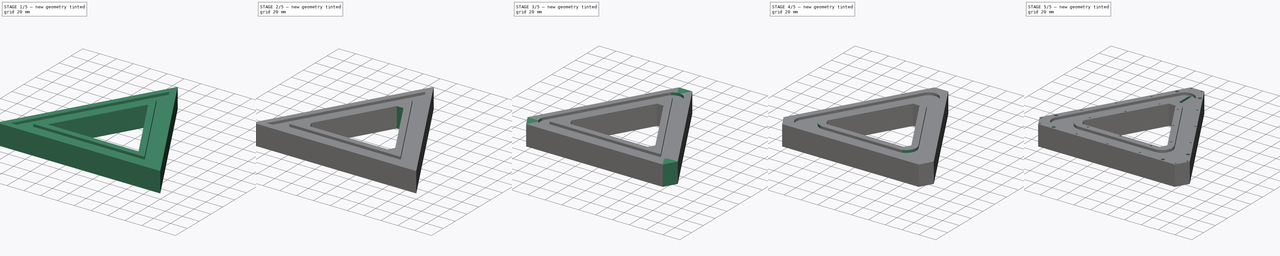
[diagram: build sequence overview — one tinted view per stage of 5, left to right]
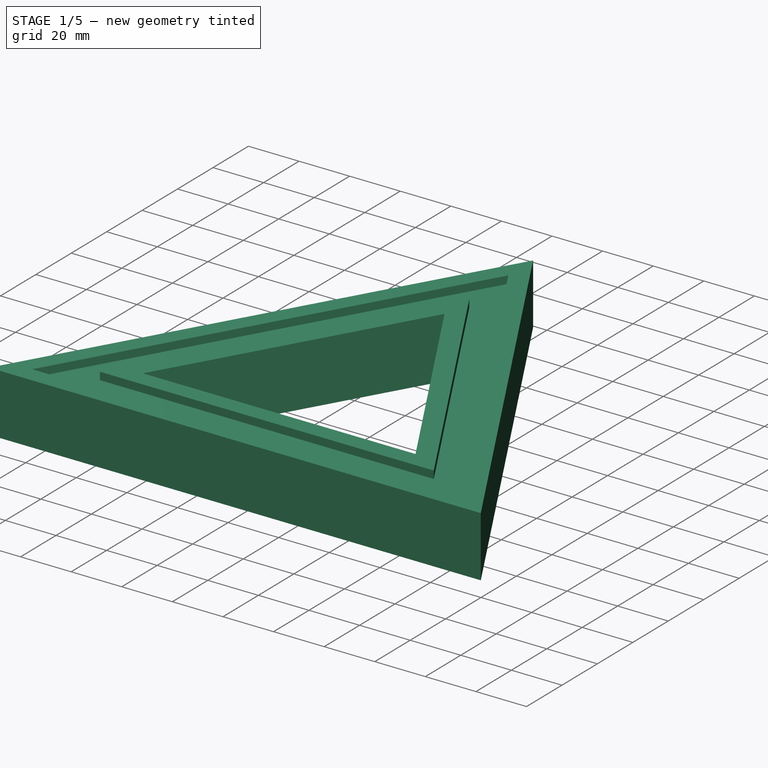
[diagram: stage 1 of 5 — iso view after this stage's code; geometry added in this stage tinted green]
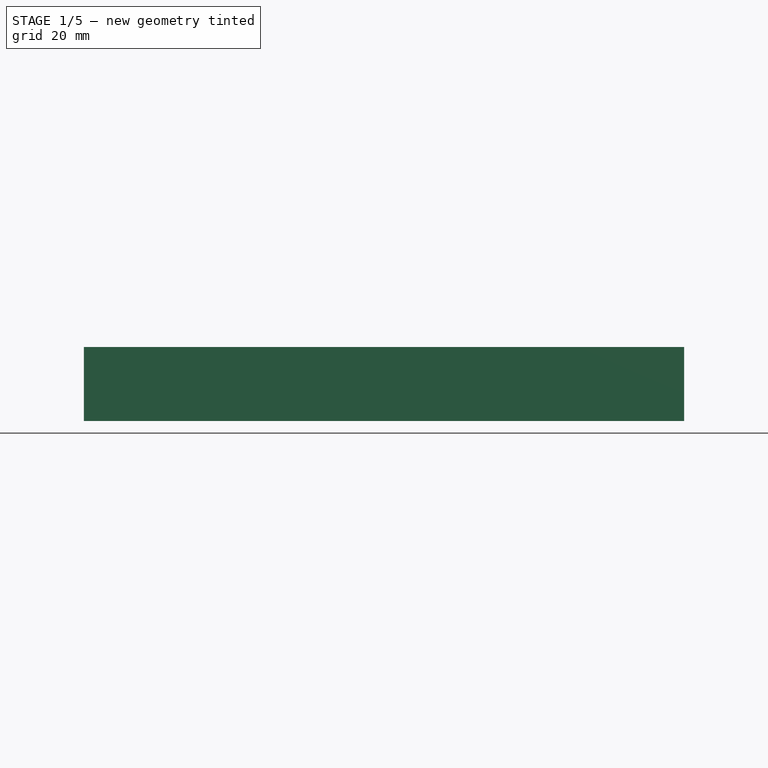
[diagram: stage 1 of 5 — front view after this stage's code; geometry added in this stage tinted green]
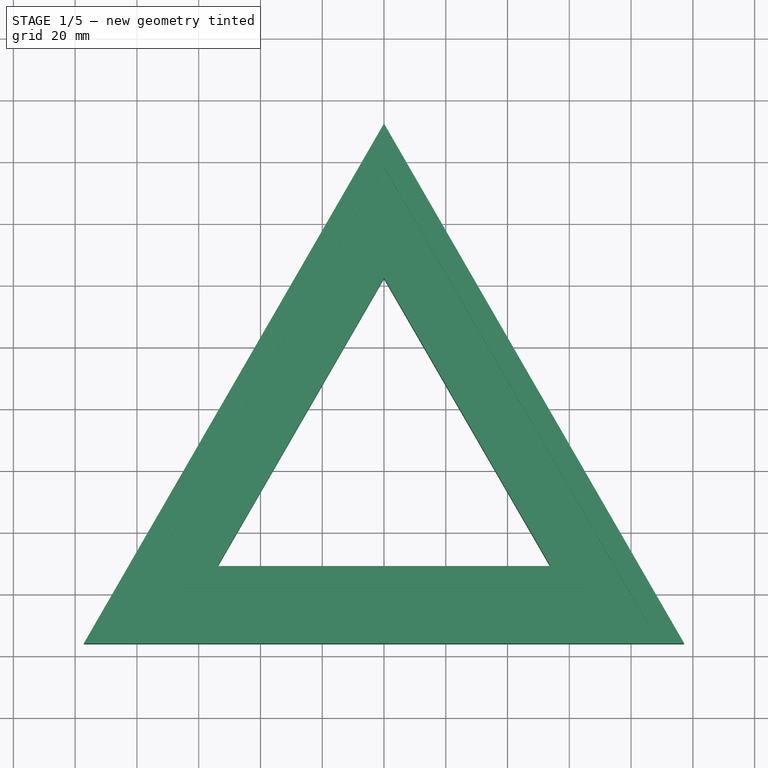
[diagram: stage 1 of 5 — top view after this stage's code; geometry added in this stage tinted green]
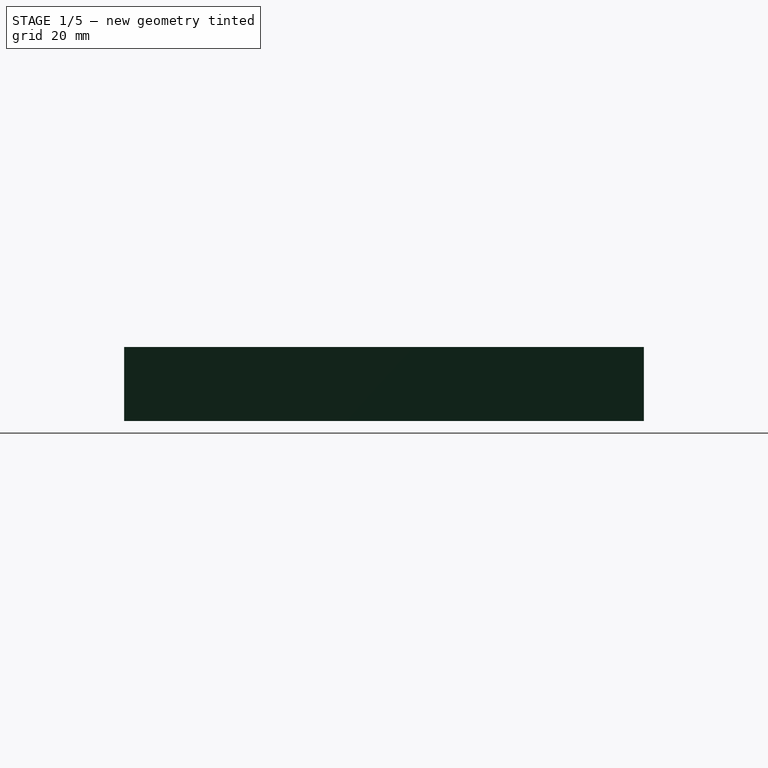
[diagram: stage 1 of 5 — right view after this stage's code; geometry added in this stage tinted green]
FCSTD DOCUMENT  (FreeCAD 0.17R13541 (Git))
Label: Technicolor-Triangle-24-WiFi-Bat-5V-LED-Grooves-Battery-Holes-Wire-CH-Fillets-CHamfs-tp4056-big-chamf-micro-charge-hidden-esp-01-through-wire-Switched-Screwed-All-Set-Back
License: All rights reserved
LicenseURL: http://en.wikipedia.org/wiki/All_rights_reserved
objects: Sketcher::SketchObject×8, PartDesign::Pocket×7, PartDesign::Fillet×4, PartDesign::PolarPattern×2, PartDesign::Chamfer×2, PartDesign::Pad×1, PartDesign::Body×1, App::Part×1
note: 33 computed .brp shape members not serialized (recipe doc carries the construction recipe); baked Part::Feature solids carry a one-line shape summary decoded from their .brp

FEATURE [Sketcher::SketchObject] Sketch
  MapMode = 5
  Support = -> [XY_Plane001]
  sketch-geometry (10):
    g0: LineSegment StartX=0 StartY=62.2095 StartZ=0 EndX=-53.875 EndY=-31.1047 EndZ=0
    g1: LineSegment StartX=-53.875 StartY=-31.1047 StartZ=0 EndX=53.875 EndY=-31.1047 EndZ=0
    g2: LineSegment StartX=53.875 StartY=-31.1047 StartZ=0 EndX=0 EndY=62.2095 EndZ=0
    g3: Circle [constr] CenterX=0 CenterY=0 CenterZ=0 NormalX=0 NormalY=0 NormalZ=1 AngleXU=0 Radius=62.2095
    g4: GeomPoint X=0 Y=-31.1047 Z=0
    g5: LineSegment StartX=0 StartY=112.209 StartZ=0 EndX=-97.1763 EndY=-56.1047 EndZ=0
    g6: LineSegment StartX=-97.1763 StartY=-56.1047 StartZ=0 EndX=97.1763 EndY=-56.1047 EndZ=0
    g7: LineSegment StartX=97.1763 StartY=-56.1047 StartZ=0 EndX=0 EndY=112.209 EndZ=0
    g8: Circle [constr] CenterX=0 CenterY=0 CenterZ=0 NormalX=0 NormalY=0 NormalZ=1 AngleXU=0 Radius=112.209
    g9: GeomPoint X=0 Y=-56.1047 Z=0
  constraints (26):
    c: Coincident(g0,g1)
    c: Coincident(g1,g2)
    c: Coincident(g2,g0)
    c: Equal(g0,g1)
    c: Equal(g0,g2)
    c: PointOnObject(g0,g3)
    c: PointOnObject(g1,g3)
    c: PointOnObject(g2,g3)
    c: Coincident(g3,g-1)
    c: PointOnObject(g2,g-2)
    c: PointOnObject(g4,g1)
    c: PointOnObject(g4,g-2)
    c: Coincident(g5,g6)
    c: Coincident(g6,g7)
    c: Coincident(g7,g5)
    c: Equal(g5,g6)
    c: Equal(g5,g7)
    c: PointOnObject(g5,g8)
    c: PointOnObject(g6,g8)
    c: PointOnObject(g7,g8)
    c: Coincident(g8,g-1)
    c: PointOnObject(g7,g-2)
    c: PointOnObject(g9,g6)
    c: PointOnObject(g9,g-2)
    c: Distance(g0,g1) = 107.75
    c: Distance(g4,g9) = 25
FEATURE [PartDesign::Pad] Pad
  Length = 24
  Length2 = 100
  Profile = -> Sketch
  Type = 0
FEATURE [Sketcher::SketchObject] Sketch001
  ExternalGeometry = -> [Pad]
  MapMode = 5
  Placement = pos=(0,0,24) rot=(0,0,1;0rad)
  Support = -> [Pad]
  sketch-geometry (11):
    g0: LineSegment StartX=0 StartY=98.2095 StartZ=0 EndX=-85.0519 EndY=-49.1047 EndZ=0
    g1: LineSegment StartX=-85.0519 StartY=-49.1047 StartZ=0 EndX=85.0519 EndY=-49.1047 EndZ=0
    g2: LineSegment StartX=85.0519 StartY=-49.1047 StartZ=0 EndX=0 EndY=98.2095 EndZ=0
    g3: Circle [constr] CenterX=0 CenterY=0 CenterZ=0 NormalX=0 NormalY=0 NormalZ=1 AngleXU=0 Radius=98.2095
    g4: GeomPoint X=0 Y=-49.1047 Z=0
    g5: GeomPoint X=0 Y=-56.1047 Z=0
    g6: LineSegment StartX=0 StartY=76.2095 StartZ=0 EndX=-65.9994 EndY=-38.1047 EndZ=0
    g7: LineSegment StartX=-65.9994 StartY=-38.1047 StartZ=0 EndX=65.9994 EndY=-38.1047 EndZ=0
    g8: LineSegment StartX=65.9994 StartY=-38.1047 StartZ=0 EndX=0 EndY=76.2095 EndZ=0
    g9: Circle [constr] CenterX=0 CenterY=0 CenterZ=0 NormalX=0 NormalY=0 NormalZ=1 AngleXU=0 Radius=76.2095
    g10: GeomPoint X=0 Y=-38.1047 Z=0
  constraints (28):
    c: Coincident(g0,g1)
    c: Coincident(g1,g2)
    c: Coincident(g2,g0)
    c: Equal(g0,g1)
    c: Equal(g0,g2)
    c: PointOnObject(g0,g3)
    c: PointOnObject(g1,g3)
    c: PointOnObject(g2,g3)
    c: Coincident(g3,g-1)
    c: PointOnObject(g2,g-2)
    c: PointOnObject(g4,g1)
    c: PointOnObject(g5,g-3)
    c: PointOnObject(g5,g-2)
    c: PointOnObject(g4,g-2)
    c: Distance(g4,g5) = 7
    c: Coincident(g6,g7)
    c: Coincident(g7,g8)
    c: Coincident(g8,g6)
    c: Equal(g6,g7)
    c: Equal(g6,g8)
    c: PointOnObject(g6,g9)
    c: PointOnObject(g7,g9)
    c: PointOnObject(g8,g9)
    c: Coincident(g9,g-1)
    c: PointOnObject(g8,g-2)
    c: PointOnObject(g10,g7)
    c: PointOnObject(g10,g-2)
    c: Distance(g10,g4) = 11
FEATURE [PartDesign::Pocket] Pocket
  BaseFeature = -> Pad
  Length = 3
  Length2 = 100
  Profile = -> Sketch001
  Type = 0
FEATURE [Sketcher::SketchObject] Sketch002
  ExternalGeometry = -> [Pocket]
  MapMode = 5
  Placement = pos=(0,0,0) rot=(1,0,0;3.14159rad)
  Support = -> [Pocket]
  sketch-geometry (9):
    g0: LineSegment StartX=-35 StartY=52.8547 StartZ=0 EndX=35 EndY=52.8547 EndZ=0
    g1: LineSegment StartX=35 StartY=52.8547 StartZ=0 EndX=35 EndY=34.3547 EndZ=0
    g2: LineSegment StartX=35 StartY=34.3547 StartZ=0 EndX=-35 EndY=34.3547 EndZ=0
    g3: LineSegment StartX=-35 StartY=34.3547 StartZ=0 EndX=-35 EndY=52.8547 EndZ=0
    g4: GeomPoint X=0 Y=52.8547 Z=0
    g5: GeomPoint X=0 Y=56.1047 Z=0
    g6: GeomPoint X=0 Y=31.1047 Z=0
    g7: GeomPoint X=0 Y=34.3547 Z=0
    g8: GeomPoint X=0 Y=52.8547 Z=0
  constraints (22):
    c: Coincident(g0,g1)
    c: Coincident(g1,g2)
    c: Coincident(g2,g3)
    c: Coincident(g3,g0)
    c: Horizontal(g0)
    c: Horizontal(g2)
    c: Vertical(g1)
    c: Vertical(g3)
    c: Distance(g0,g1) = 18.5
    c: Distance(g0,g0) = 70
    c: PointOnObject(g4,g0)
    c: Symmetric(g0,g0,g4)
    c: PointOnObject(g4,g-2)
    c: PointOnObject(g5,g-3)
    c: PointOnObject(g6,g-4)
    c: PointOnObject(g6,g-2)
    c: PointOnObject(g5,g-2)
    c: PointOnObject(g7,g2)
    c: PointOnObject(g8,g0)
    c: PointOnObject(g8,g-2)
    c: PointOnObject(g7,g-2)
    c: Distance(g7,g6) = 3.25
FEATURE [PartDesign::Pocket] Pocket001
  BaseFeature = -> Pocket
  Length = 18
  Length2 = 100
  Profile = -> Sketch002
  Type = 0
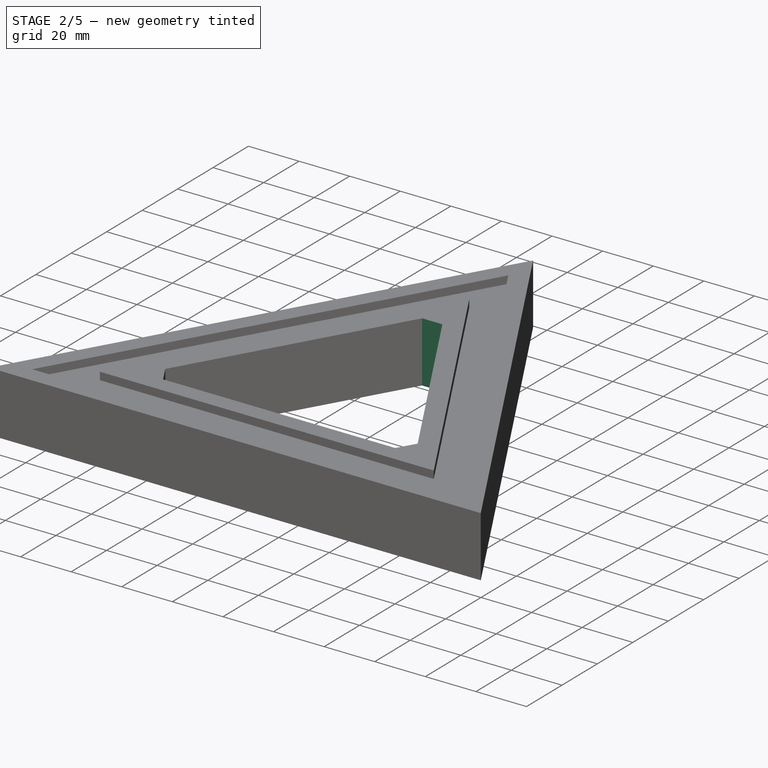
[diagram: stage 2 of 5 — iso view after this stage's code; geometry added in this stage tinted green]
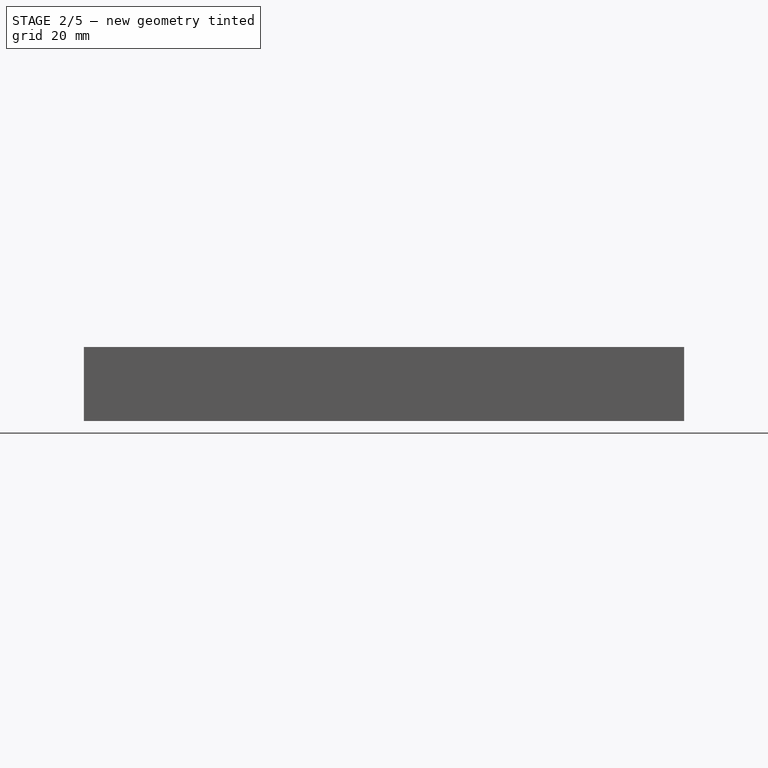
[diagram: stage 2 of 5 — front view after this stage's code; geometry added in this stage tinted green]
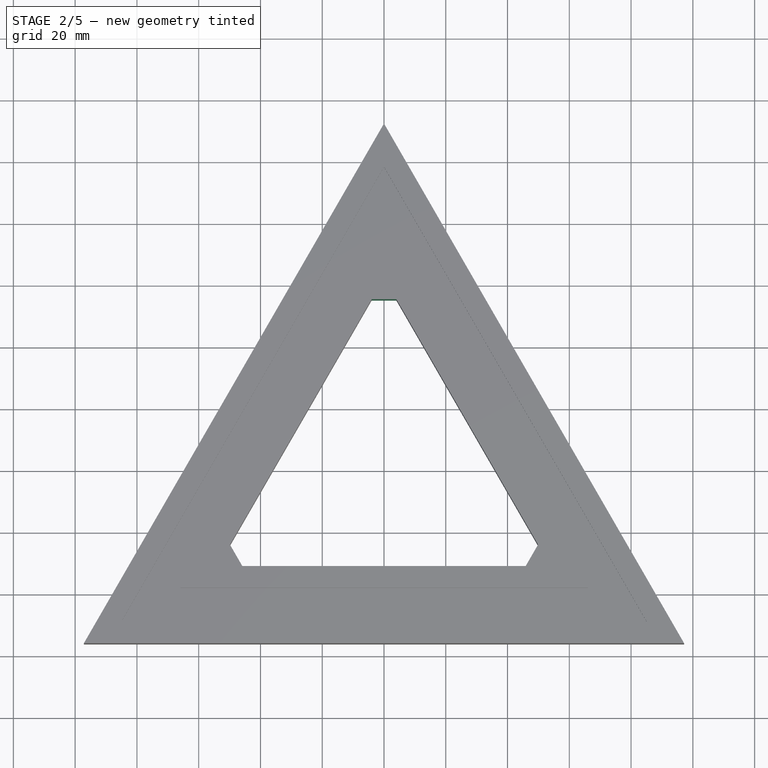
[diagram: stage 2 of 5 — top view after this stage's code; geometry added in this stage tinted green]
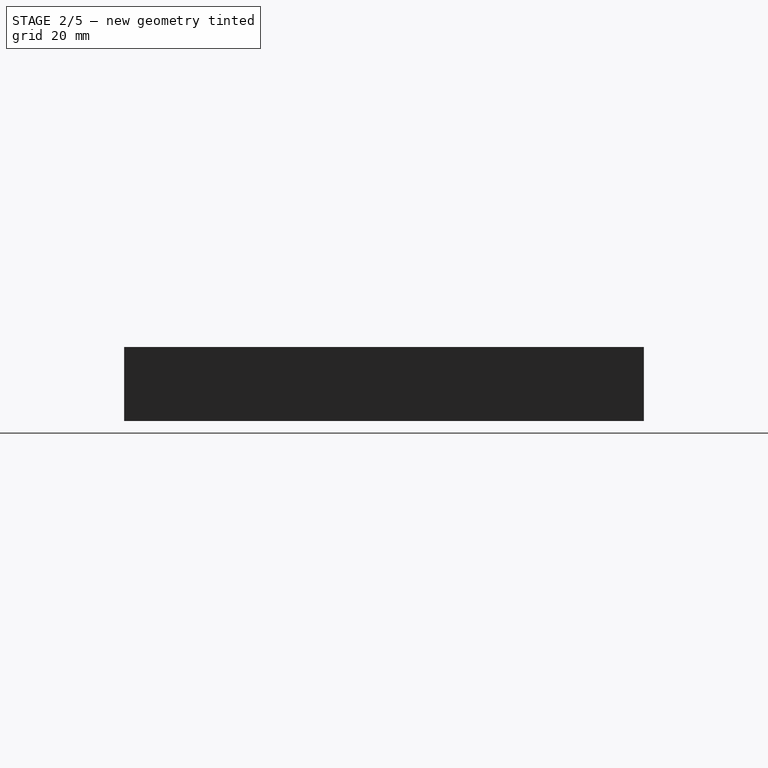
[diagram: stage 2 of 5 — right view after this stage's code; geometry added in this stage tinted green]
FEATURE [PartDesign::PolarPattern] PolarPattern
  Angle = 360
  Axis = -> Sketch002 [N_Axis]
  BaseFeature = -> Pocket001
  Occurrences = 3
  Originals = -> [Pocket001]
FEATURE [Sketcher::SketchObject] Sketch003
  ExternalGeometry = -> [PolarPattern]
  MapMode = 5
  Placement = pos=(0,0,0) rot=(1,0,0;3.14159rad)
  Support = -> [PolarPattern]
  sketch-geometry (12):
    g0: LineSegment StartX=0 StartY=-100.209 StartZ=0 EndX=86.784 EndY=50.1047 EndZ=0
    g1: LineSegment StartX=86.784 StartY=50.1047 StartZ=0 EndX=-86.784 EndY=50.1047 EndZ=0
    g2: LineSegment StartX=-86.784 StartY=50.1047 StartZ=0 EndX=0 EndY=-100.209 EndZ=0
    g3: Circle [constr] CenterX=0 CenterY=0 CenterZ=0 NormalX=0 NormalY=0 NormalZ=1 AngleXU=0 Radius=100.209
    g4: GeomPoint X=0 Y=50.1047 Z=0
    g5: GeomPoint X=0 Y=56.1047 Z=0
    g6: LineSegment StartX=0 StartY=-74.2095 StartZ=0 EndX=64.2673 EndY=37.1047 EndZ=0
    g7: LineSegment StartX=64.2673 StartY=37.1047 StartZ=0 EndX=-64.2673 EndY=37.1047 EndZ=0
    g8: LineSegment StartX=-64.2673 StartY=37.1047 StartZ=0 EndX=0 EndY=-74.2095 EndZ=0
    g9: Circle [constr] CenterX=0 CenterY=0 CenterZ=0 NormalX=0 NormalY=0 NormalZ=1 AngleXU=0 Radius=74.2095
    g10: GeomPoint X=0 Y=37.1047 Z=0
    g11: GeomPoint X=0 Y=31.1047 Z=0
  constraints (30):
    c: Coincident(g0,g1)
    c: Coincident(g1,g2)
    c: Coincident(g2,g0)
    c: Equal(g0,g1)
    c: Equal(g0,g2)
    c: PointOnObject(g0,g3)
    c: PointOnObject(g1,g3)
    c: PointOnObject(g2,g3)
    c: Coincident(g3,g-1)
    c: PointOnObject(g2,g-2)
    c: PointOnObject(g4,g1)
    c: PointOnObject(g5,g-3)
    c: PointOnObject(g4,g-2)
    c: PointOnObject(g5,g-2)
    c: Distance(g5,g4) = 6
    c: Coincident(g6,g7)
    c: Coincident(g7,g8)
    c: Coincident(g8,g6)
    c: Equal(g6,g7)
    c: Equal(g6,g8)
    c: PointOnObject(g6,g9)
    c: PointOnObject(g7,g9)
    c: PointOnObject(g8,g9)
    c: Coincident(g9,g-1)
    c: PointOnObject(g8,g-2)
    c: PointOnObject(g10,g7)
    c: PointOnObject(g11,g-4)
    c: PointOnObject(g10,g-2)
    c: PointOnObject(g11,g-2)
    c: Distance(g10,g11) = 6
FEATURE [PartDesign::Pocket] Pocket002
  BaseFeature = -> PolarPattern
  Length = 6
  Length2 = 100
  Profile = -> Sketch003
  Type = 0
FEATURE [PartDesign::Chamfer] Chamfer
  Base = -> Pocket002 [Edge118,Edge115,Edge116]
  BaseFeature = -> Pocket002
  Size = 8
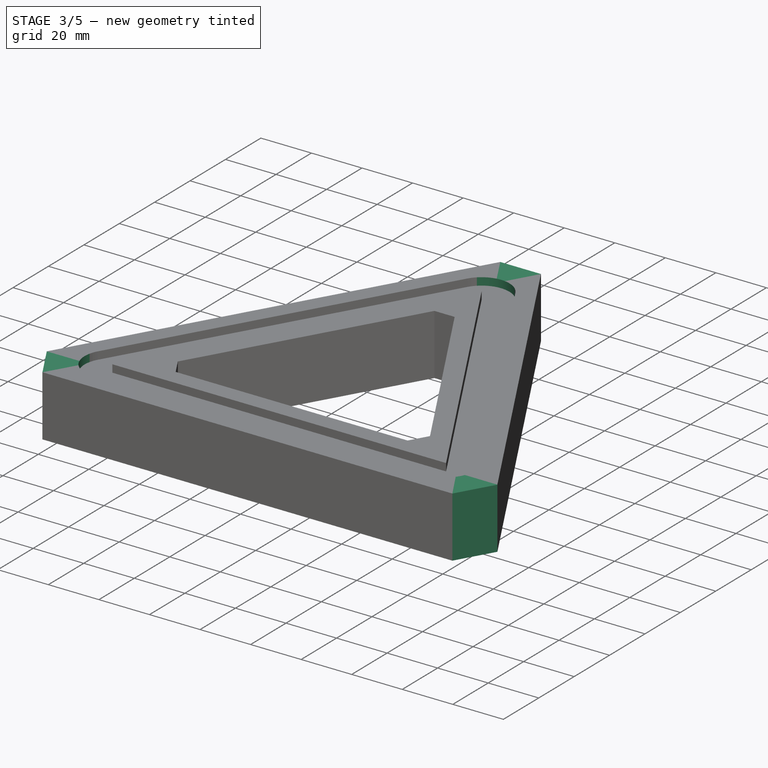
[diagram: stage 3 of 5 — iso view after this stage's code; geometry added in this stage tinted green]
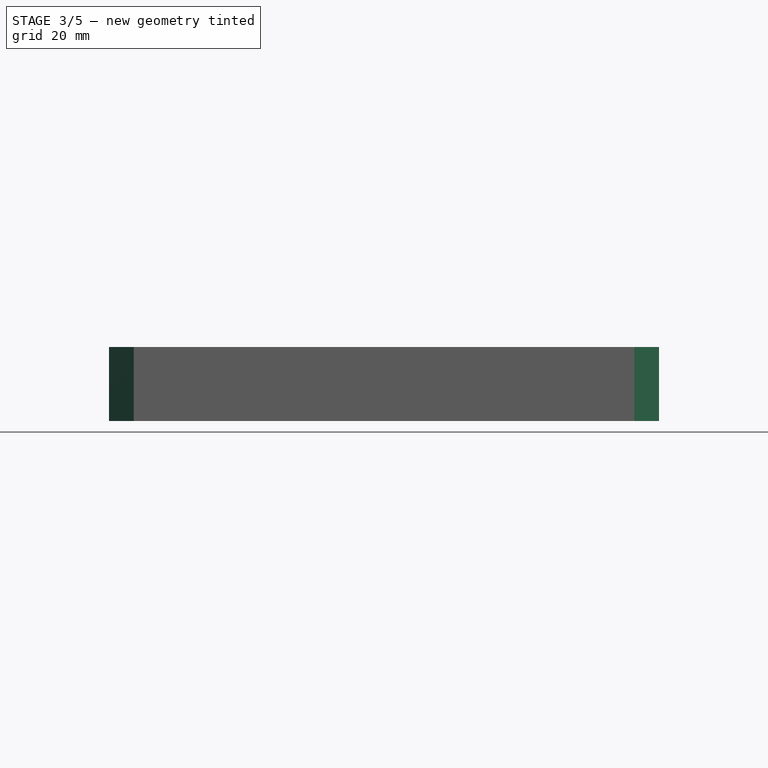
[diagram: stage 3 of 5 — front view after this stage's code; geometry added in this stage tinted green]
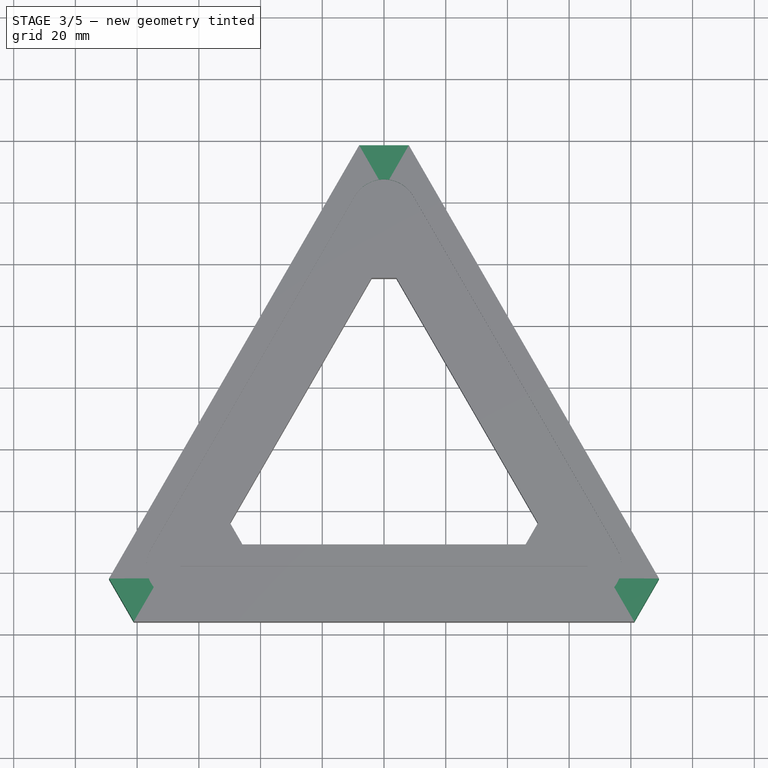
[diagram: stage 3 of 5 — top view after this stage's code; geometry added in this stage tinted green]
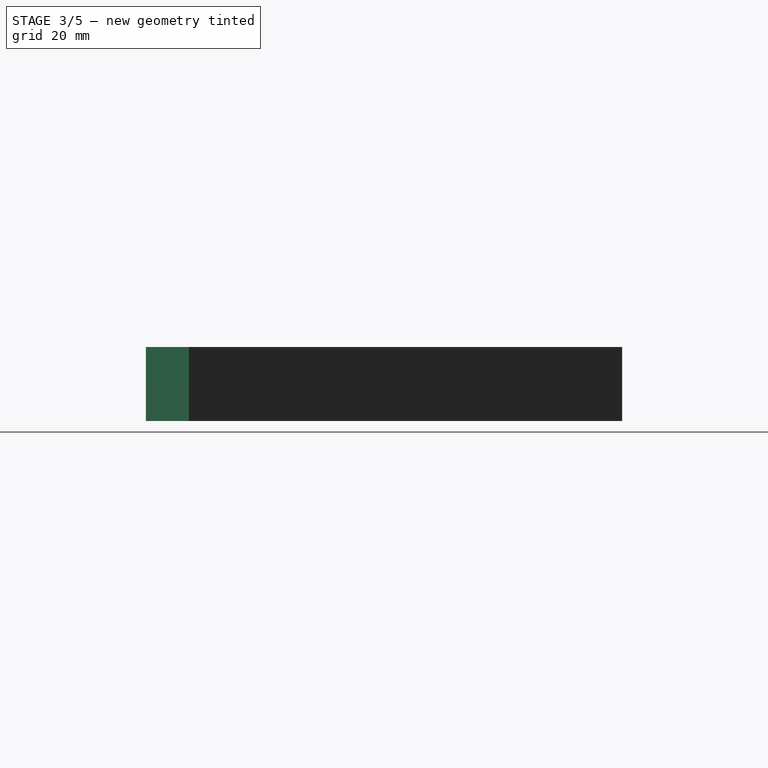
[diagram: stage 3 of 5 — right view after this stage's code; geometry added in this stage tinted green]
FEATURE [PartDesign::Fillet] Fillet
  Base = -> Chamfer [Edge105,Edge113,Edge109]
  BaseFeature = -> Chamfer
  Radius = 13
FEATURE [PartDesign::Fillet] Fillet001
  Base = -> Fillet [Edge22,Edge120,Edge124]
  BaseFeature = -> Fillet
  Radius = 11
FEATURE [PartDesign::Chamfer] Chamfer001
  Base = -> Fillet001 [Edge133,Edge130,Edge131]
  BaseFeature = -> Fillet001
  Size = 16.1
FEATURE [PartDesign::Fillet] Fillet002
  Base = -> Chamfer001 [Edge136,Edge137,Edge139]
  BaseFeature = -> Chamfer001
  Radius = 11
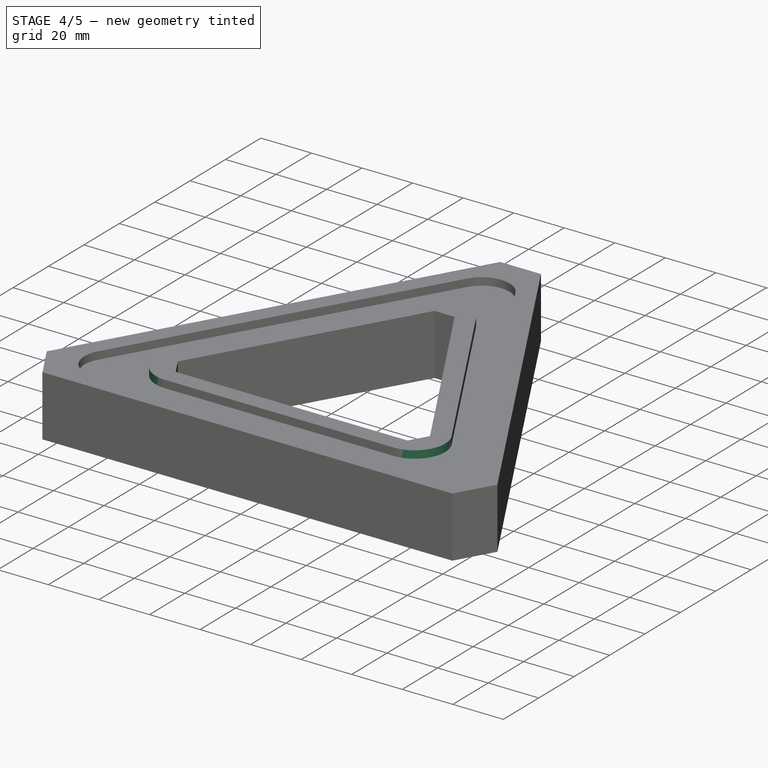
[diagram: stage 4 of 5 — iso view after this stage's code; geometry added in this stage tinted green]
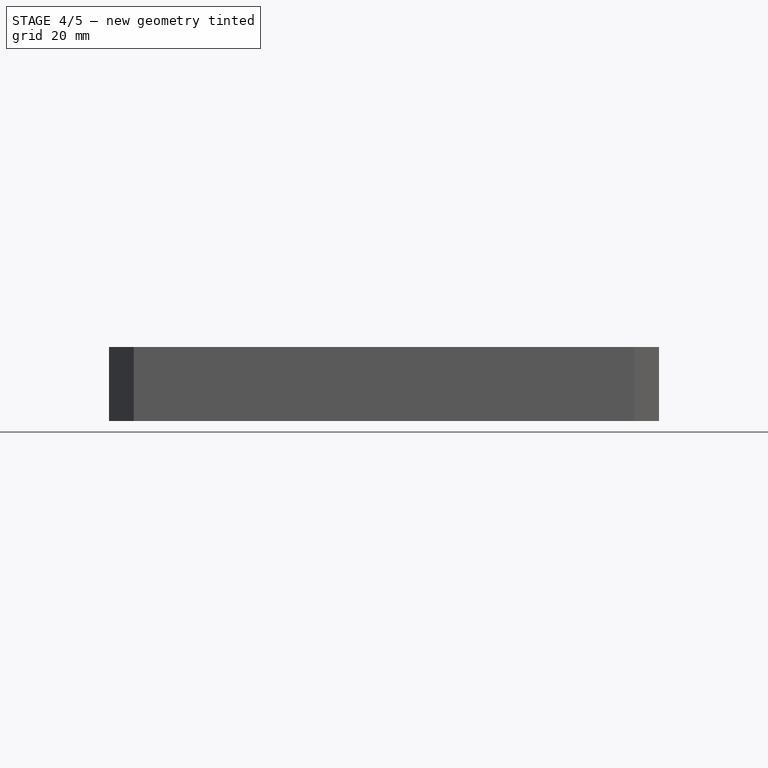
[diagram: stage 4 of 5 — front view after this stage's code; geometry added in this stage tinted green]
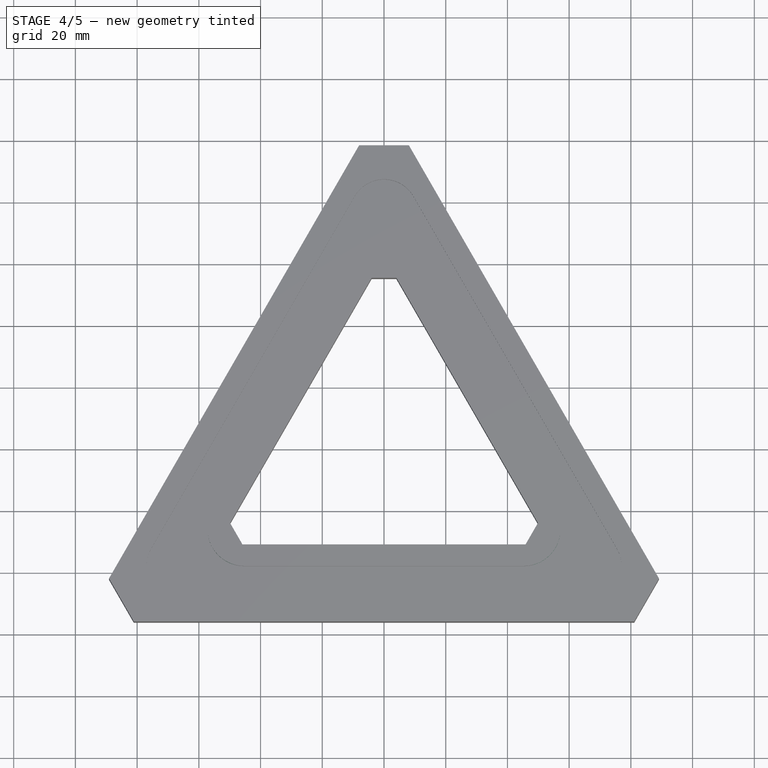
[diagram: stage 4 of 5 — top view after this stage's code; geometry added in this stage tinted green]
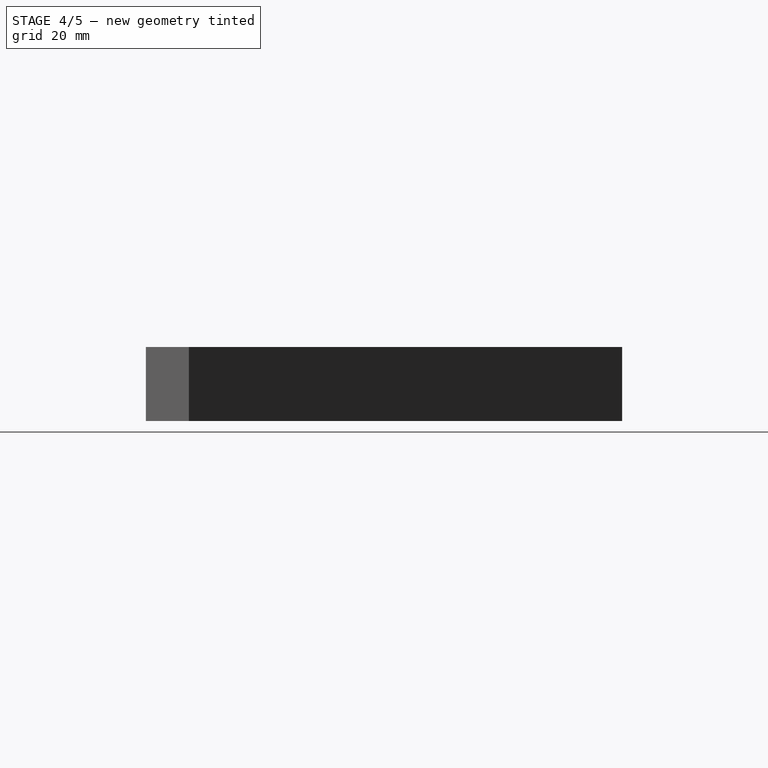
[diagram: stage 4 of 5 — right view after this stage's code; geometry added in this stage tinted green]
FEATURE [PartDesign::Fillet] Fillet003
  Base = -> Fillet002 [Edge58,Edge59,Edge61]
  BaseFeature = -> Fillet002
  Radius = 12
FEATURE [Sketcher::SketchObject] Sketch004
  ExternalGeometry = -> [Fillet003]
  MapMode = 5
  Placement = pos=(0,0,6) rot=(1,0,0;3.14159rad)
  Support = -> [Fillet003]
  sketch-geometry (9):
    g0: LineSegment StartX=-8.75 StartY=-71.2665 StartZ=0 EndX=8.75 EndY=-71.2665 EndZ=0
    g1: LineSegment StartX=8.75 StartY=-71.2665 StartZ=0 EndX=8.75 EndY=-94.7665 EndZ=0
    g2: LineSegment StartX=-8.75 StartY=-94.7665 StartZ=0 EndX=-8.75 EndY=-71.2665 EndZ=0
    g3: GeomPoint X=0 Y=-71.2665 Z=0
    g4: LineSegment StartX=-4 StartY=-94.7665 StartZ=0 EndX=-4 EndY=-98.2665 EndZ=0
    g5: LineSegment StartX=4 StartY=-94.7665 StartZ=0 EndX=4 EndY=-98.2665 EndZ=0
    g6: LineSegment StartX=-4 StartY=-98.2665 StartZ=0 EndX=4 EndY=-98.2665 EndZ=0
    g7: LineSegment StartX=-8.75 StartY=-94.7665 StartZ=0 EndX=-4 EndY=-94.7665 EndZ=0
    g8: LineSegment StartX=4 StartY=-94.7665 StartZ=0 EndX=8.75 EndY=-94.7665 EndZ=0
  constraints (26):
    c: Coincident(g0,g1)
    c: Coincident(g2,g0)
    c: Horizontal(g0)
    c: Vertical(g1)
    c: Vertical(g2)
    c: Distance(g0) = 17.5
    c: Distance(g2) = 23.5
    c: PointOnObject(g3,g0)
    c: Symmetric(g0,g0,g3)
    c: PointOnObject(g3,g-2)
    c: Vertical(g4)
    c: Vertical(g5)
    c: Coincident(g6,g4)
    c: Coincident(g6,g5)
    c: Distance(g4) = 3.5
    c: Equal(g4,g5)
    c: Distance(g6) = 8
    c: Distance(g5,g1) = 4.75
    c: Coincident(g7,g2)
    c: Coincident(g7,g4)
    c: Horizontal(g7)
    c: Coincident(g8,g5)
    c: Coincident(g8,g1)
    c: Horizontal(g8)
    c: Equal(g2,g1)
    c: PointOnObject(g4,g-6)
FEATURE [PartDesign::Pocket] Pocket003
  BaseFeature = -> Fillet003
  Length = 6
  Length2 = 100
  Profile = -> Sketch004
  Type = 0
FEATURE [Sketcher::SketchObject] Sketch005
  ExternalGeometry = -> [Pocket003]
  MapMode = 5
  Placement = pos=(0,0,0) rot=(1,0,0;3.14159rad)
  Support = -> [Pocket003]
  sketch-geometry (4):
    g0: LineSegment StartX=46.1716 StartY=38.9547 StartZ=0 EndX=68.6883 EndY=51.9547 EndZ=0
    g1: LineSegment StartX=68.6883 StartY=51.9547 StartZ=0 EndX=79.3383 EndY=33.5084 EndZ=0
    g2: LineSegment StartX=79.3383 StartY=33.5084 StartZ=0 EndX=56.8216 EndY=20.5084 EndZ=0
    g3: LineSegment StartX=56.8216 StartY=20.5084 StartZ=0 EndX=46.1716 EndY=38.9547 EndZ=0
  constraints (12):
    c: Coincident(g0,g1)
    c: Coincident(g1,g2)
    c: Coincident(g2,g3)
    c: Coincident(g3,g0)
    c: Angle(g0,g1) = 1.5708
    c: Angle(g2,g3) = 1.5708
    c: Angle(g3,g0) = 1.5708
    c: Angle(g1,g-2) = -0.523599
    c: Distance(g0) = 26
    c: Distance(g3) = 21.3
    c: Distance(g0,g-3) = 4.15
    c: Distance(g1,g-4) = 4.15
FEATURE [PartDesign::Pocket] Pocket004
  BaseFeature = -> Pocket003
  Length = 18
  Length2 = 100
  Profile = -> Sketch005
  Type = 0
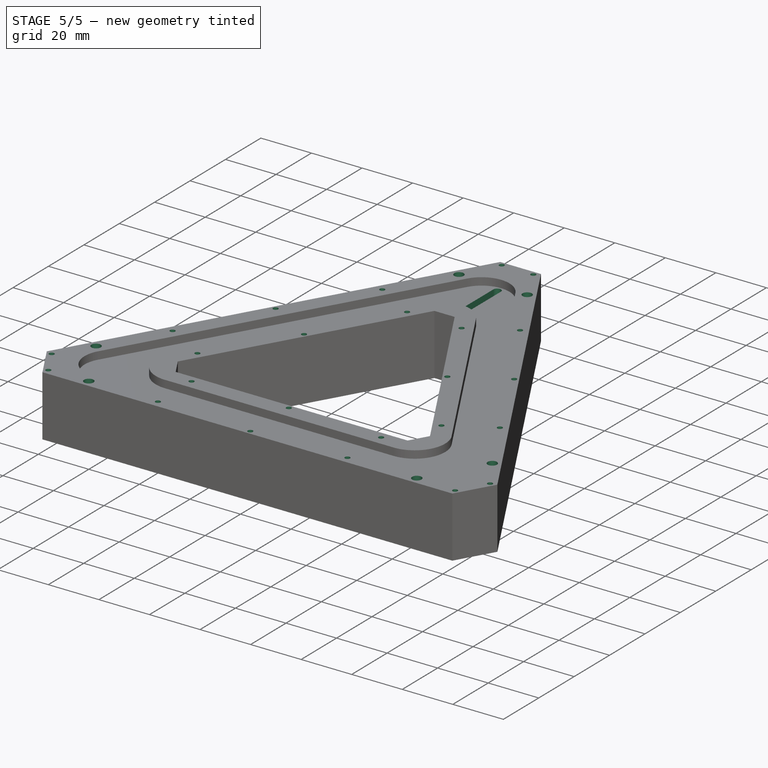
[diagram: stage 5 of 5 — iso view after this stage's code; geometry added in this stage tinted green]
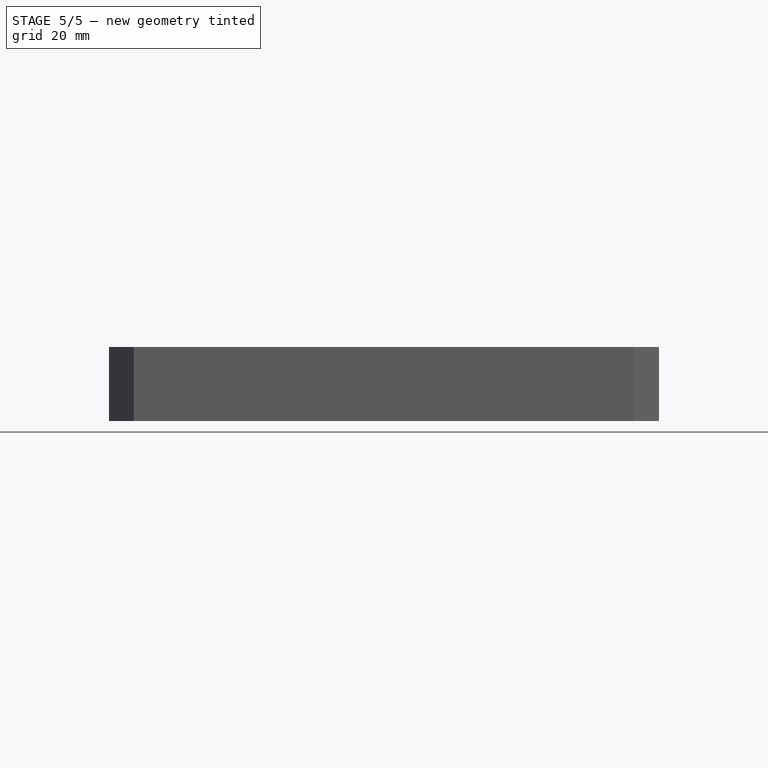
[diagram: stage 5 of 5 — front view after this stage's code; geometry added in this stage tinted green]
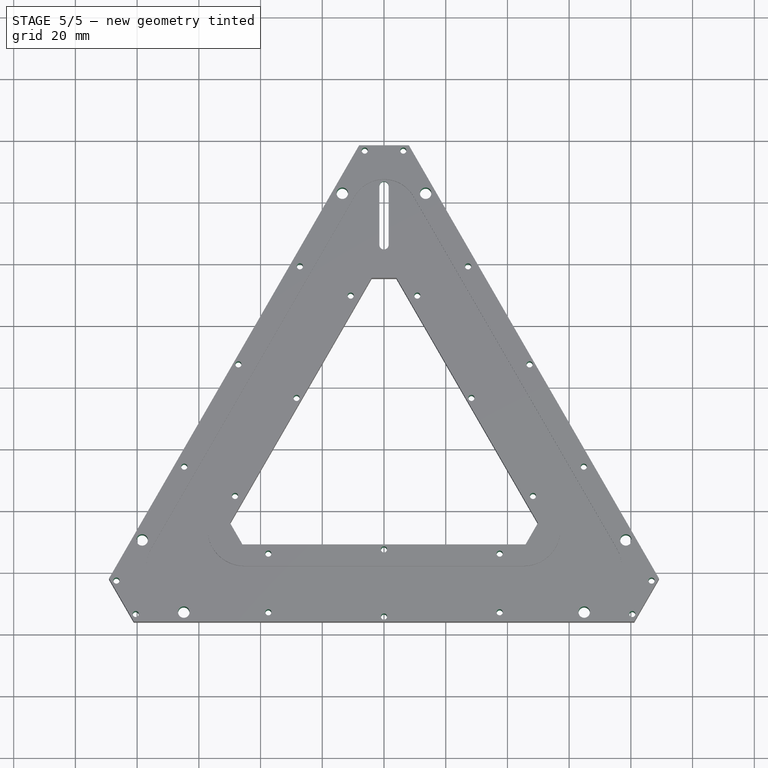
[diagram: stage 5 of 5 — top view after this stage's code; geometry added in this stage tinted green]
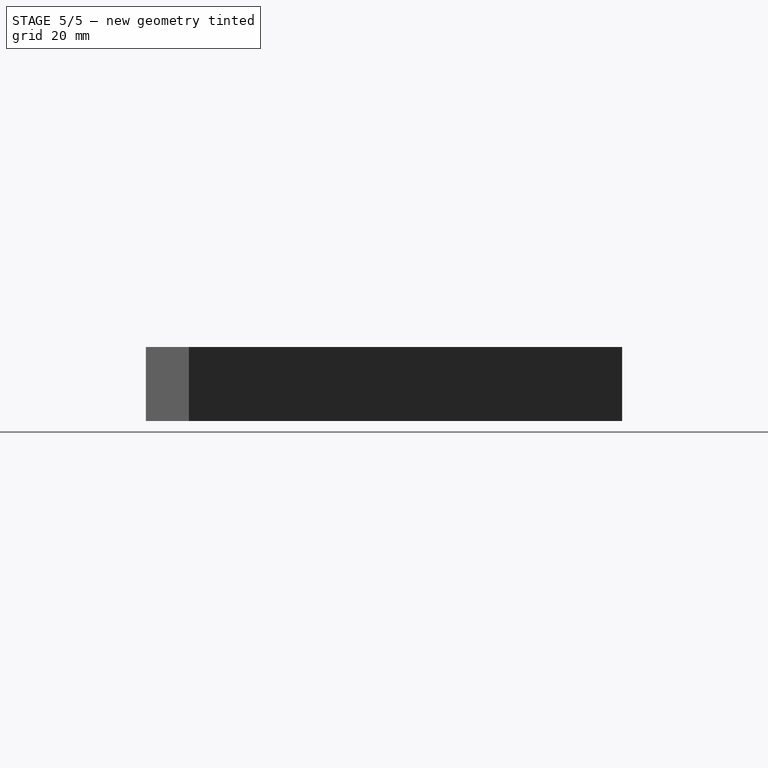
[diagram: stage 5 of 5 — right view after this stage's code; geometry added in this stage tinted green]
FEATURE [Sketcher::SketchObject] Sketch006
  MapMode = 5
  Placement = pos=(0,0,21) rot=(0,0,1;0rad)
  Support = -> [Pocket004]
  sketch-geometry (4):
    g0: ArcOfCircle CenterX=0 CenterY=85.0405 CenterZ=0 NormalX=0 NormalY=0 NormalZ=1 AngleXU=0 Radius=1.5 StartAngle=0 EndAngle=3.14159
    g1: ArcOfCircle CenterX=0 CenterY=66.0405 CenterZ=0 NormalX=0 NormalY=0 NormalZ=1 AngleXU=0 Radius=1.5 StartAngle=3.14159 EndAngle=6.28319
    g2: LineSegment StartX=-1.5 StartY=85.0405 StartZ=0 EndX=-1.5 EndY=66.0405 EndZ=0
    g3: LineSegment StartX=1.5 StartY=85.0405 StartZ=0 EndX=1.5 EndY=66.0405 EndZ=0
  constraints (9):
    c: Tangent(g0,g3) = 1.5708
    c: Tangent(g0,g2) = -1.5708
    c: Tangent(g2,g1) = -1.5708
    c: Tangent(g3,g1) = 1.5708
    c: Vertical(g2)
    c: Equal(g0,g1)
    c: PointOnObject(g0,g-2)
    c: Distance(g0,g0) = 3
    c: Distance(g3) = 19
FEATURE [PartDesign::Pocket] Pocket005
  BaseFeature = -> Pocket004
  Length = 5
  Length2 = 100
  Profile = -> Sketch006
  Type = 1
FEATURE [Sketcher::SketchObject] Sketch012
  MapMode = 5
  Placement = pos=(0,0,0) rot=(1,0,0;3.14159rad)
  sketch-geometry (12):
    g0: Circle CenterX=-13.5 CenterY=-82.7032 CenterZ=0 NormalX=0 NormalY=0 NormalZ=1 AngleXU=0 Radius=1.85
    g1: Circle CenterX=13.5 CenterY=-82.7032 CenterZ=0 NormalX=0 NormalY=0 NormalZ=1 AngleXU=0 Radius=1.85
    g2: GeomPoint X=-13.9389 Y=-84.5004 Z=0
    g3: Circle CenterX=-6.25 CenterY=-96.5165 CenterZ=0 NormalX=0 NormalY=0 NormalZ=1 AngleXU=0 Radius=0.99
    g4: Circle CenterX=6.25 CenterY=-96.5165 CenterZ=0 NormalX=0 NormalY=0 NormalZ=1 AngleXU=0 Radius=0.99
    g5: GeomPoint X=-5.26979 Y=-96.3776 Z=0
    g6: Circle CenterX=-27.2463 CenterY=-59.0175 CenterZ=0 NormalX=0 NormalY=0 NormalZ=1 AngleXU=0 Radius=0.99
    g7: Circle CenterX=-47.1862 CenterY=-27.2406 CenterZ=0 NormalX=0 NormalY=0 NormalZ=1 AngleXU=0 Radius=0.99
    g8: Circle CenterX=-64.7338 CenterY=5.91273 CenterZ=0 NormalX=0 NormalY=0 NormalZ=1 AngleXU=0 Radius=0.99
    g9: Circle CenterX=-10.7918 CenterY=-49.5175 CenterZ=0 NormalX=0 NormalY=0 NormalZ=1 AngleXU=0 Radius=0.99
    g10: Circle CenterX=-28.3394 CenterY=-16.3642 CenterZ=0 NormalX=0 NormalY=0 NormalZ=1 AngleXU=0 Radius=0.99
    g11: Circle CenterX=-48.2793 CenterY=15.4127 CenterZ=0 NormalX=0 NormalY=0 NormalZ=1 AngleXU=0 Radius=0.99
  constraints (16):
    c: PointOnObject(g2,g0)
    c: Distance(g0,g2) = 1.85
    c: Equal(g0,g1)
    c: Distance(g0,g-2) = 13.5
    c: Distance(g1,g-2) = 13.5
    c: PointOnObject(g5,g3)
    c: Distance(g3,g5) = 0.99
    c: Equal(g3,g4)
    c: Distance(g3,g-2) = 6.25
    c: Distance(g4,g-2) = 6.25
    c: Equal(g6,g3)
    c: Equal(g7,g3)
    c: Equal(g8,g7)
    c: Equal(g9,g6)
    c: Equal(g9,g10)
    c: Equal(g11,g7)
FEATURE [PartDesign::Pocket] Pocket011
  BaseFeature = -> Pocket005
  Length = 5
  Length2 = 100
  Profile = -> Sketch012
  Type = 1
FEATURE [PartDesign::PolarPattern] PolarPattern001
  Angle = 360
  Axis = -> Sketch012 [N_Axis]
  BaseFeature = -> Pocket011
  Occurrences = 3
  Originals = -> [Pocket011]
FEATURE [PartDesign::Body] Body
  Group = -> [Sketch,Pad,Sketch001,Pocket,Sketch002,Pocket001,PolarPattern,Sketch003,Pocket002,Chamfer,Fillet,Fillet001,Chamfer001,Fillet002,Fillet003,Sketch004,Pocket003,Sketch005,Pocket004,Sketch006,Pocket005,Sketch012,Pocket011,PolarPattern001]
  Origin = -> Origin001
  Tip = -> PolarPattern001
FEATURE [App::Part] Part
  Group = -> [Body]
  License = CC BY 3.0
  LicenseURL = http://creativecommons.org/licenses/by/3.0/
  Origin = -> Origin
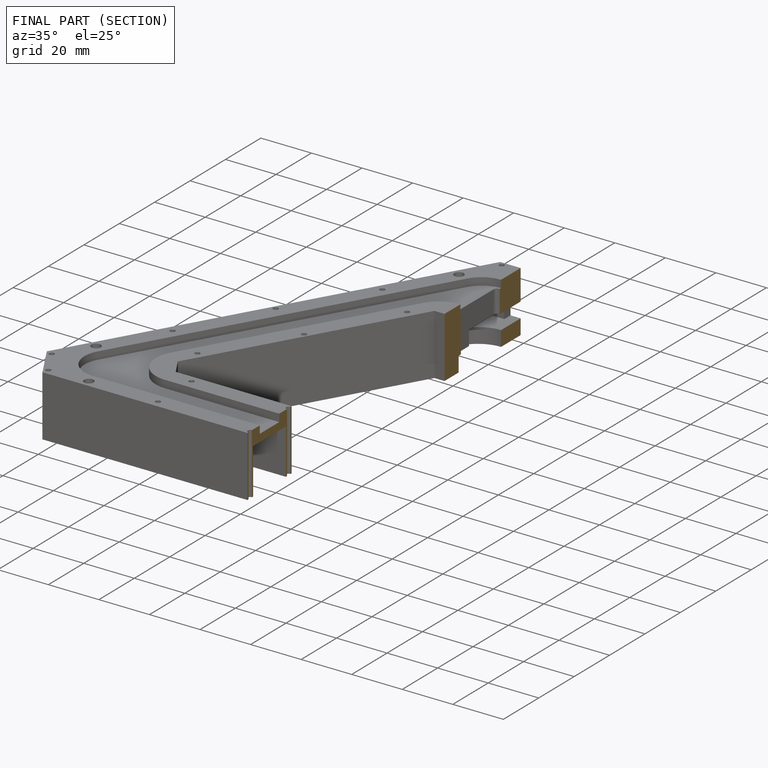
[diagram: finished part — half-section view (interior)]
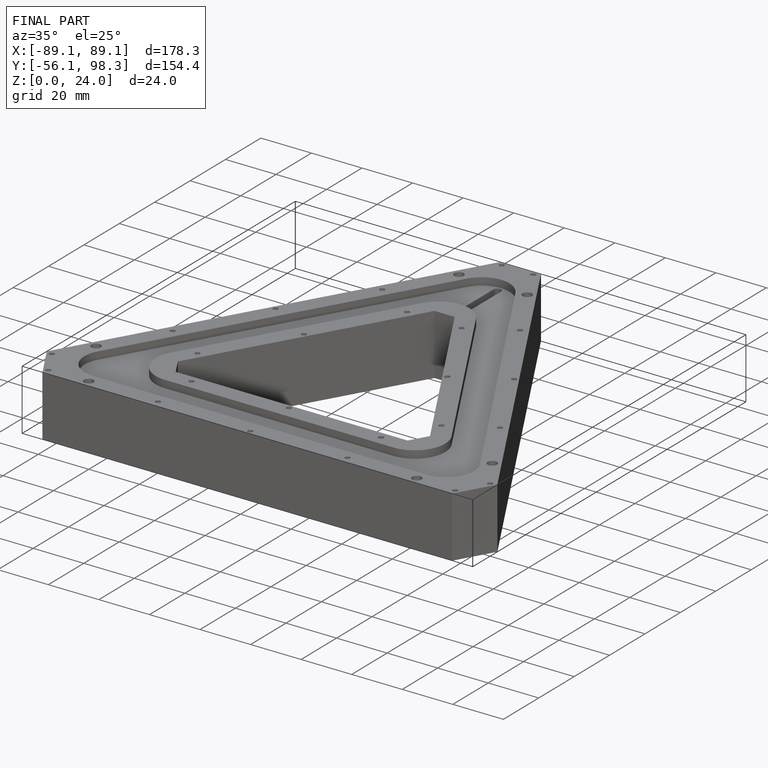
[diagram: finished part — iso view with bounding-box wireframe]
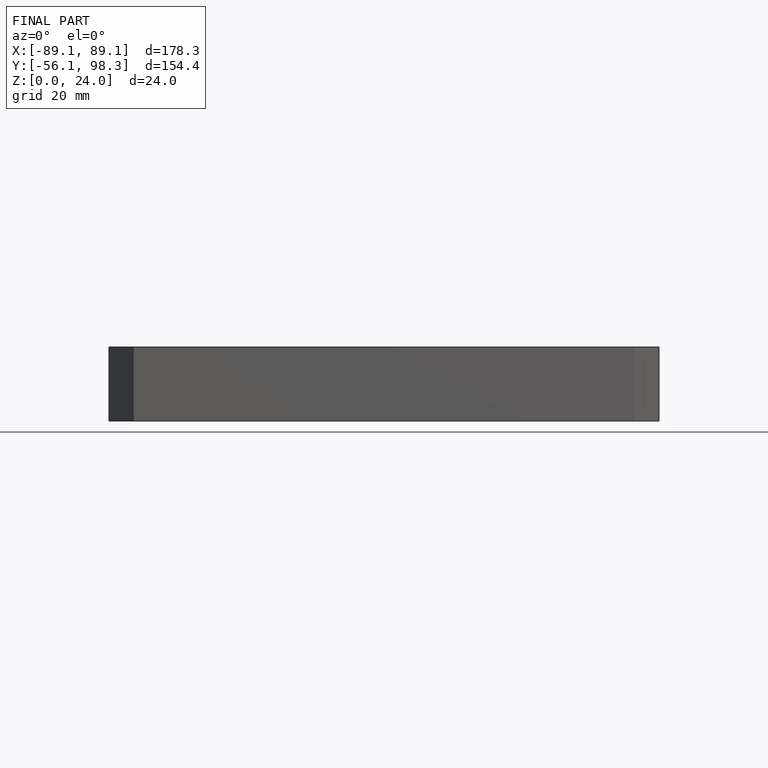
[diagram: finished part — front view with bounding-box wireframe]
